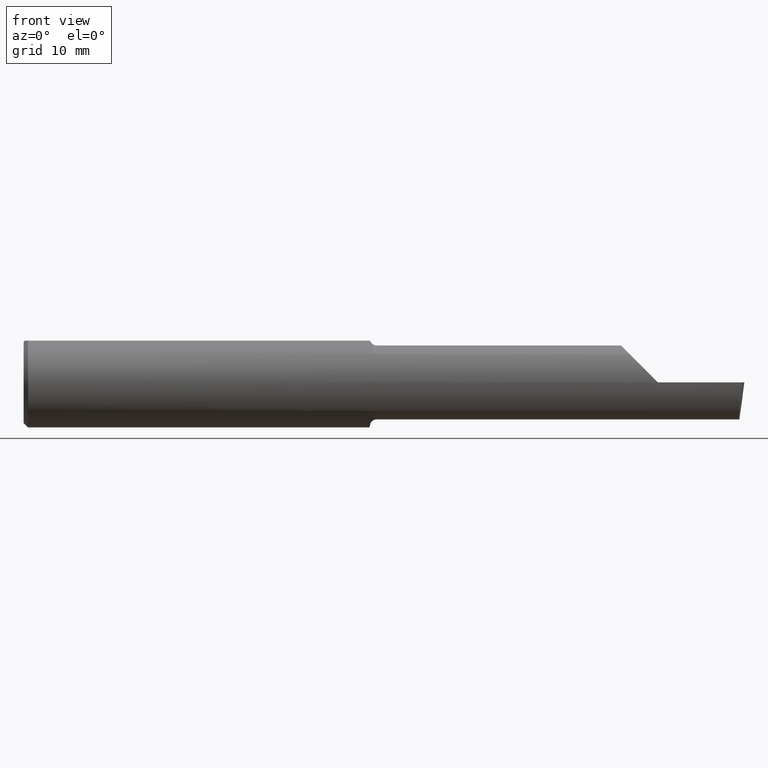
[diagram: clean part render]
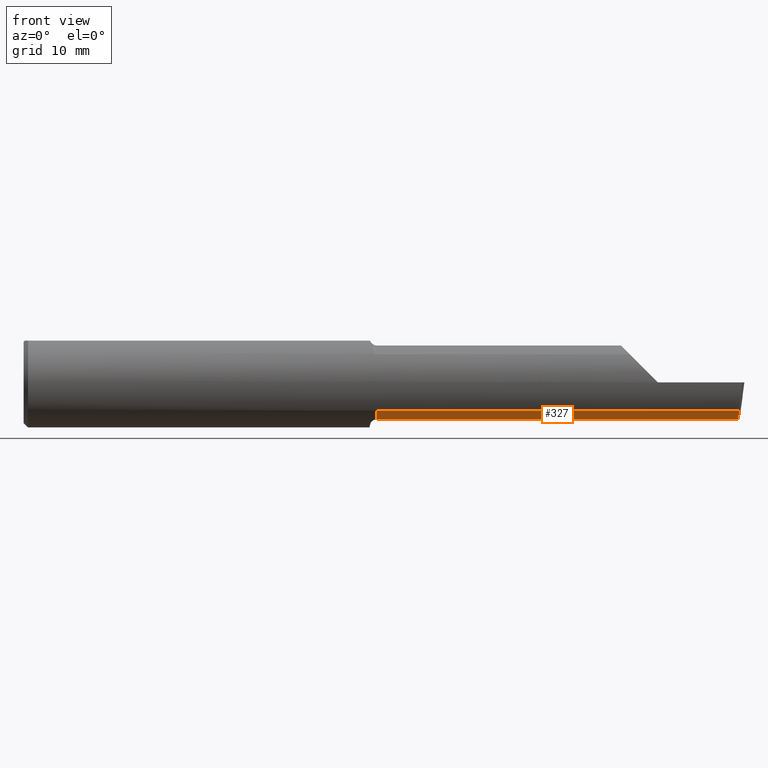
[diagram: same view with one face highlighted and labeled with its STEP entity id]
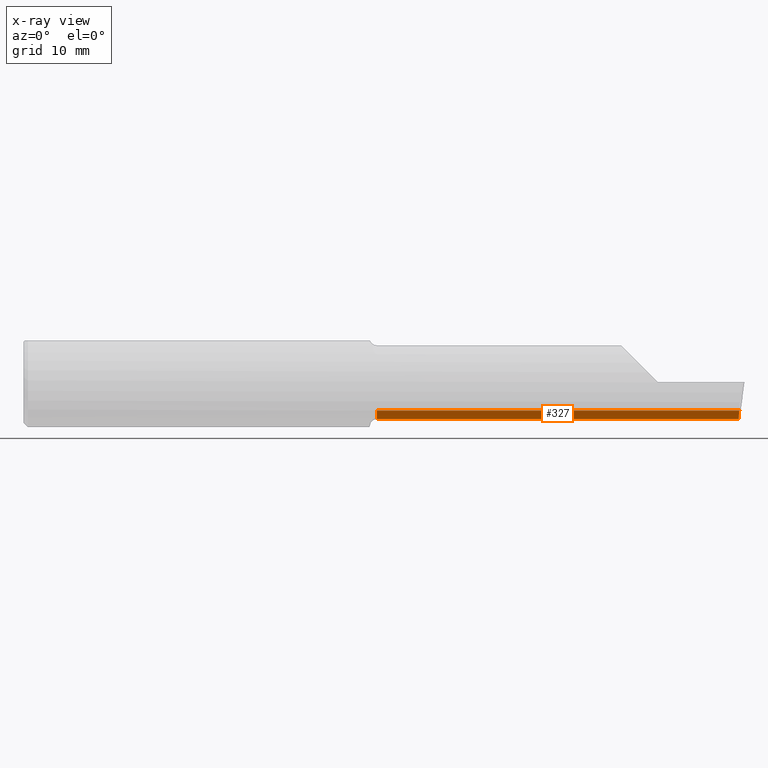
[diagram: x-ray of the same camera — body ghosted, the highlighted face saturated]
A machine part, front view. The second image highlights one B-rep face of the part: STEP entity #327.
The next image is the same camera in x-ray: the body ghosted, the highlighted face saturated — about 0% of this face is hidden behind the body in this view.
In plain terms, the highlighted cylindrical surface (partial cylindrical patch) has radius 3.2512 mm, axis along (-1, -0, -0).
Its self-contained STEP definition (entity closure, byte-faithful):
#7 = EDGE_CURVE ( 'NONE', #1161, #1194, #812, .T. ) ;
#23 = VECTOR ( 'NONE', #426, 39.37007874015748143 ) ;
#50 = LINE ( 'NONE', #897, #1104 ) ;
#105 = CARTESIAN_POINT ( 'NONE',  ( 2.480543170215857351, -0.09830280903914324908, -0.1175203894739908633 ) ) ;
#139 = ORIENTED_EDGE ( 'NONE', *, *, #689, .F. ) ;
#215 = DIRECTION ( 'NONE',  ( 0.000000000000000000, 0.000000000000000000, -1.000000000000000000 ) ) ;
#279 = CARTESIAN_POINT ( 'NONE',  ( 2.480909479427934272, -0.03909999999999996811, -0.1279999999999999749 ) ) ;
#280 = ORIENTED_EDGE ( 'NONE', *, *, #7, .T. ) ;
#327 = ADVANCED_FACE ( 'NONE', ( #1162 ), #698, .T. ) ;
#351 = AXIS2_PLACEMENT_3D ( 'NONE', #798, #693, #215 ) ;
#367 = EDGE_CURVE ( 'NONE', #1194, #500, #1014, .T. ) ;
#426 = DIRECTION ( 'NONE',  ( -1.000000000000000000, -0.000000000000000000, -0.000000000000000000 ) ) ;
#493 = EDGE_CURVE ( 'NONE', #809, #500, #50, .T. ) ;
#500 = VERTEX_POINT ( 'NONE', #525 ) ;
#513 = ORIENTED_EDGE ( 'NONE', *, *, #367, .T. ) ;
#525 = CARTESIAN_POINT ( 'NONE',  ( 1.225000000000000089, -0.03909999999999996811, -0.1280000000000000027 ) ) ;
#689 = EDGE_CURVE ( 'NONE', #701, #809, #930, .T. ) ;
#693 = DIRECTION ( 'NONE',  ( 1.000000000000000000, 0.000000000000000000, 0.000000000000000000 ) ) ;
#698 = CYLINDRICAL_SURFACE ( 'NONE', #1160, 0.1280000000000000027 ) ;
#701 = VERTEX_POINT ( 'NONE', #1129 ) ;
#703 = CARTESIAN_POINT ( 'NONE',  ( 2.482171087834817325, -0.1216370843989768719, -0.09783470600413822493 ) ) ;
#729 = EDGE_LOOP ( 'NONE', ( #854, #139, #904, #280, #513 ) ) ;
#737 = CARTESIAN_POINT ( 'NONE',  ( 2.482171087834817325, -0.1216370843989768719, -0.09783470600413822493 ) ) ;
#744 = DIRECTION ( 'NONE',  ( -1.000000000000000000, -0.000000000000000000, -0.000000000000000000 ) ) ;
#784 = VECTOR ( 'NONE', #744, 39.37007874015748143 ) ;
#798 = CARTESIAN_POINT ( 'NONE',  ( 1.225000000000000089, -0.03909999999999998199, 0.000000000000000000 ) ) ;
#809 = VERTEX_POINT ( 'NONE', #1073 ) ;
#812 = LINE ( 'NONE', #931, #23 ) ;
#828 = DIRECTION ( 'NONE',  ( -1.000000000000000000, -0.000000000000000000, -0.000000000000000000 ) ) ;
#842 = EDGE_CURVE ( 'NONE', #1161, #701, #1211, .T. ) ;
#854 = ORIENTED_EDGE ( 'NONE', *, *, #493, .F. ) ;
#884 = CARTESIAN_POINT ( 'NONE',  ( 2.480104879617984537, -0.06962891318477891500, -0.1280000000000000027 ) ) ;
#889 = DIRECTION ( 'NONE',  ( -1.000000000000000000, -0.000000000000000000, -0.000000000000000000 ) ) ;
#897 = CARTESIAN_POINT ( 'NONE',  ( 1.199999999999999956, -0.03909999999999996811, -0.1280000000000000027 ) ) ;
#904 = ORIENTED_EDGE ( 'NONE', *, *, #842, .F. ) ;
#930 = LINE ( 'NONE', #1141, #784 ) ;
#931 = CARTESIAN_POINT ( 'NONE',  ( 1.715000000000000080, -0.1216370843989768857, -0.09783470600413826657 ) ) ;
#1014 = CIRCLE ( 'NONE', #351, 0.1280000000000000027 ) ;
#1018 = CARTESIAN_POINT ( 'NONE',  ( 1.199999999999999956, -0.03909999999999998199, 0.000000000000000000 ) ) ;
#1020 = CARTESIAN_POINT ( 'NONE',  ( 1.225000000000000089, -0.1216370843989768857, -0.09783470600413826657 ) ) ;
#1064 = DIRECTION ( 'NONE',  ( 0.000000000000000000, 0.000000000000000000, 1.000000000000000000 ) ) ;
#1073 = CARTESIAN_POINT ( 'NONE',  ( 2.229999999999999982, -0.03909999999999996811, -0.1279999999999999749 ) ) ;
#1104 = VECTOR ( 'NONE', #828, 39.37007874015748143 ) ;
#1129 = CARTESIAN_POINT ( 'NONE',  ( 2.480909479427934272, -0.03909999999999996811, -0.1279999999999999749 ) ) ;
#1141 = CARTESIAN_POINT ( 'NONE',  ( 2.500000000000001332, -0.03909999999999996811, -0.1279999999999999749 ) ) ;
#1160 = AXIS2_PLACEMENT_3D ( 'NONE', #1018, #889, #1064 ) ;
#1161 = VERTEX_POINT ( 'NONE', #737 ) ;
#1162 = FACE_OUTER_BOUND ( 'NONE', #729, .T. ) ;
#1194 = VERTEX_POINT ( 'NONE', #1020 ) ;
#1211 =( BOUNDED_CURVE ( )  B_SPLINE_CURVE ( 3, ( #703, #105, #884, #279 ),
 .UNSPECIFIED., .F., .F. ) 
 B_SPLINE_CURVE_WITH_KNOTS ( ( 4, 4 ),
 ( 5.809715919723475785, 6.510504952072789564 ),
 .UNSPECIFIED. ) 
 CURVE ( )  GEOMETRIC_REPRESENTATION_ITEM ( )  RATIONAL_B_SPLINE_CURVE ( ( 1.000000000000000000, 0.9594915740107961000, 0.9594915740107961000, 1.000000000000000000 ) ) 
 REPRESENTATION_ITEM ( '' )  );